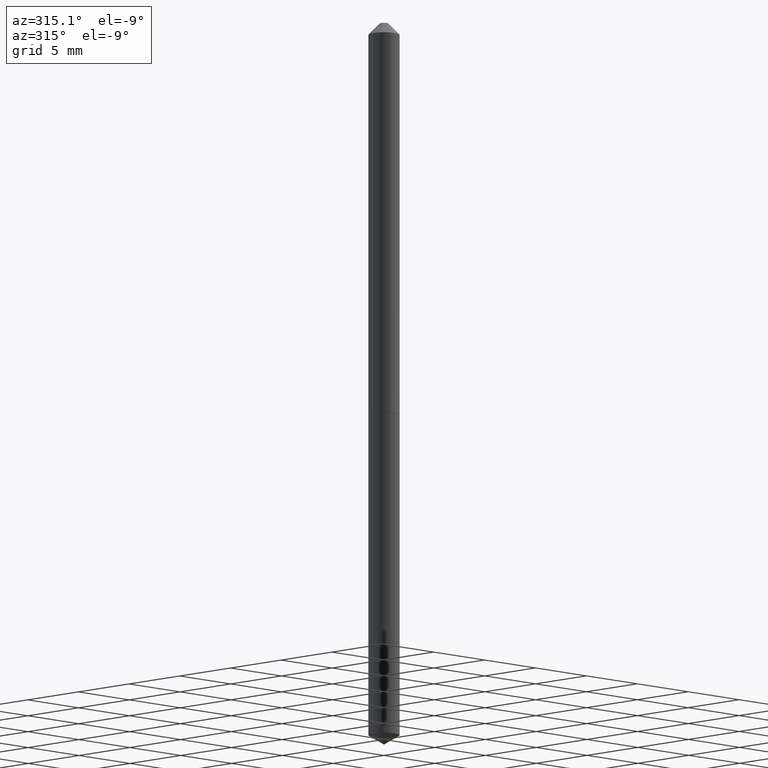
[diagram: clean part render]
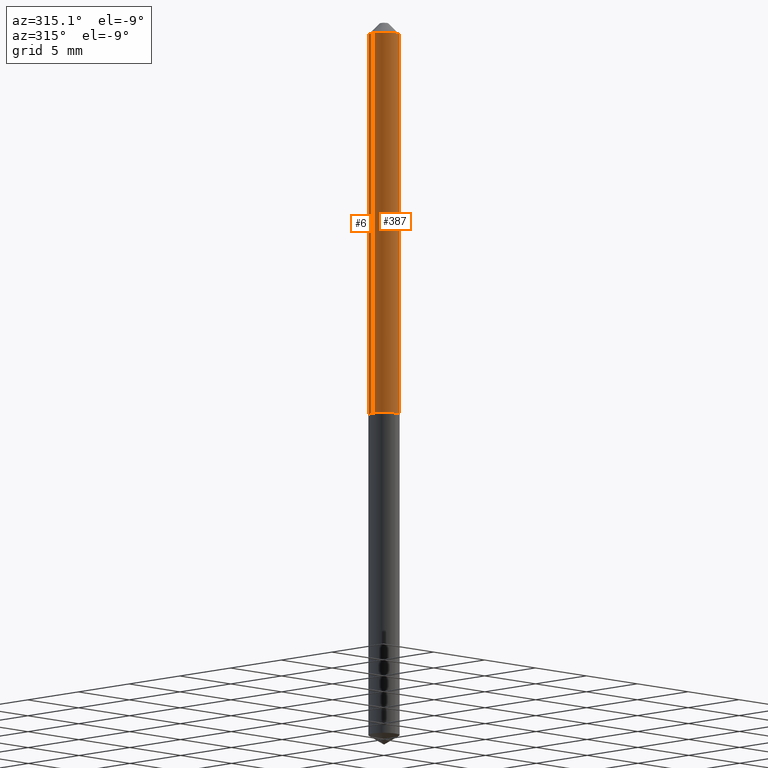
[diagram: same view with one multi-face feature highlighted, each face labeled with its STEP entity id]
A machine part, auxiliary view. The highlighted faces form ONE feature: a constant-radius fillet chain: 2 tangent blend faces with common blend radius 1.0922 mm. The faces share edges in the B-rep.
Their STEP definitions:
[1] entity #6 (Cylinder):
#3 = ORIENTED_EDGE ( 'NONE', *, *, #52, .F. ) ;
#6 = ADVANCED_FACE ( 'NONE', ( #16 ), #342, .T. ) ;
#16 = FACE_OUTER_BOUND ( 'NONE', #121, .T. ) ;
#18 = CIRCLE ( 'NONE', #99, 0.04300000000000013534 ) ;
#20 = CARTESIAN_POINT ( 'NONE',  ( -0.04300000000000001044, -1.644022516199696687E-15, -0.03125000000000020817 ) ) ;
#22 = DIRECTION ( 'NONE',  ( -2.445468806185136877E-29, 3.491481338843145188E-15, 1.000000000000000000 ) ) ;
#30 = CIRCLE ( 'NONE', #134, 0.04300000000000001044 ) ;
#38 = ORIENTED_EDGE ( 'NONE', *, *, #179, .T. ) ;
#42 = VERTEX_POINT ( 'NONE', #164 ) ;
#46 = DIRECTION ( 'NONE',  ( -2.445468806185136877E-29, 3.491481338843145188E-15, 1.000000000000000000 ) ) ;
#52 = EDGE_CURVE ( 'NONE', #89, #42, #319, .T. ) ;
#56 = ORIENTED_EDGE ( 'NONE', *, *, #240, .F. ) ;
#65 = VECTOR ( 'NONE', #46, 39.37007874015748143 ) ;
#89 = VERTEX_POINT ( 'NONE', #168 ) ;
#99 = AXIS2_PLACEMENT_3D ( 'NONE', #115, #232, #259 ) ;
#115 = CARTESIAN_POINT ( 'NONE',  ( 2.654556389113965852E-29, -3.790002993314234131E-15, -1.085499999999999909 ) ) ;
#121 = EDGE_LOOP ( 'NONE', ( #303, #38, #56, #3 ) ) ;
#134 = AXIS2_PLACEMENT_3D ( 'NONE', #268, #265, #304 ) ;
#136 = EDGE_CURVE ( 'NONE', #89, #141, #18, .T. ) ;
#141 = VERTEX_POINT ( 'NONE', #178 ) ;
#164 = CARTESIAN_POINT ( 'NONE',  ( 0.04300000000000001044, -4.093761869793585120E-16, -0.03125000000000020817 ) ) ;
#168 = CARTESIAN_POINT ( 'NONE',  ( 0.04300000000000013534, -4.090270388454744578E-15, -1.085499999999999909 ) ) ;
#170 = CARTESIAN_POINT ( 'NONE',  ( -0.04300000000000007983, 3.055333763768436471E-16, -2.115142088809613253E-30 ) ) ;
#178 = CARTESIAN_POINT ( 'NONE',  ( -0.04300000000000013534, -3.484469616937389991E-15, -1.085499999999999909 ) ) ;
#179 = EDGE_CURVE ( 'NONE', #141, #332, #230, .T. ) ;
#195 = DIRECTION ( 'NONE',  ( 1.000000000000000000, -6.982962677686265922E-15, 4.876176775795935793E-29 ) ) ;
#204 = VECTOR ( 'NONE', #22, 39.37007874015748143 ) ;
#221 = CARTESIAN_POINT ( 'NONE',  ( 0.000000000000000000, 0.000000000000000000, 0.000000000000000000 ) ) ;
#230 = LINE ( 'NONE', #170, #65 ) ;
#232 = DIRECTION ( 'NONE',  ( -2.445468806185136597E-29, 3.491481338843145583E-15, 1.000000000000000000 ) ) ;
#240 = EDGE_CURVE ( 'NONE', #42, #332, #30, .T. ) ;
#255 = AXIS2_PLACEMENT_3D ( 'NONE', #221, #345, #195 ) ;
#259 = DIRECTION ( 'NONE',  ( 1.000000000000000000, -6.982962677686265133E-15, 0.000000000000000000 ) ) ;
#265 = DIRECTION ( 'NONE',  ( -2.445468806185136597E-29, 3.491481338843145583E-15, 1.000000000000000000 ) ) ;
#268 = CARTESIAN_POINT ( 'NONE',  ( 7.642090019328602662E-31, -1.091087918388490267E-16, -0.03125000000000020817 ) ) ;
#303 = ORIENTED_EDGE ( 'NONE', *, *, #136, .T. ) ;
#304 = DIRECTION ( 'NONE',  ( 1.000000000000000000, -6.982962677686265922E-15, 0.000000000000000000 ) ) ;
#319 = LINE ( 'NONE', #356, #204 ) ;
#332 = VERTEX_POINT ( 'NONE', #20 ) ;
#342 = CYLINDRICAL_SURFACE ( 'NONE', #255, 0.04300000000000007983 ) ;
#345 = DIRECTION ( 'NONE',  ( -2.445468806185136597E-29, 3.491481338843145583E-15, 1.000000000000000000 ) ) ;
#356 = CARTESIAN_POINT ( 'NONE',  ( 0.04300000000000007983, -3.002673951405100030E-16, 2.096756013592256259E-30 ) ) ;
[2] entity #387 (Cylinder):
#13 = CIRCLE ( 'NONE', #227, 0.04300000000000013534 ) ;
#20 = CARTESIAN_POINT ( 'NONE',  ( -0.04300000000000001044, -1.644022516199696687E-15, -0.03125000000000020817 ) ) ;
#22 = DIRECTION ( 'NONE',  ( -2.445468806185136877E-29, 3.491481338843145188E-15, 1.000000000000000000 ) ) ;
#32 = CARTESIAN_POINT ( 'NONE',  ( 2.654556389113965852E-29, -3.790002993314234131E-15, -1.085499999999999909 ) ) ;
#42 = VERTEX_POINT ( 'NONE', #164 ) ;
#46 = DIRECTION ( 'NONE',  ( -2.445468806185136877E-29, 3.491481338843145188E-15, 1.000000000000000000 ) ) ;
#52 = EDGE_CURVE ( 'NONE', #89, #42, #319, .T. ) ;
#55 = ORIENTED_EDGE ( 'NONE', *, *, #52, .T. ) ;
#57 = AXIS2_PLACEMENT_3D ( 'NONE', #338, #245, #237 ) ;
#65 = VECTOR ( 'NONE', #46, 39.37007874015748143 ) ;
#79 = CYLINDRICAL_SURFACE ( 'NONE', #91, 0.04300000000000007983 ) ;
#89 = VERTEX_POINT ( 'NONE', #168 ) ;
#91 = AXIS2_PLACEMENT_3D ( 'NONE', #198, #169, #144 ) ;
#119 = ORIENTED_EDGE ( 'NONE', *, *, #179, .F. ) ;
#141 = VERTEX_POINT ( 'NONE', #178 ) ;
#144 = DIRECTION ( 'NONE',  ( 1.000000000000000000, -6.982962677686265922E-15, 4.876176775795935793E-29 ) ) ;
#164 = CARTESIAN_POINT ( 'NONE',  ( 0.04300000000000001044, -4.093761869793585120E-16, -0.03125000000000020817 ) ) ;
#168 = CARTESIAN_POINT ( 'NONE',  ( 0.04300000000000013534, -4.090270388454744578E-15, -1.085499999999999909 ) ) ;
#169 = DIRECTION ( 'NONE',  ( -2.445468806185136597E-29, 3.491481338843145583E-15, 1.000000000000000000 ) ) ;
#170 = CARTESIAN_POINT ( 'NONE',  ( -0.04300000000000007983, 3.055333763768436471E-16, -2.115142088809613253E-30 ) ) ;
#178 = CARTESIAN_POINT ( 'NONE',  ( -0.04300000000000013534, -3.484469616937389991E-15, -1.085499999999999909 ) ) ;
#179 = EDGE_CURVE ( 'NONE', #141, #332, #230, .T. ) ;
#198 = CARTESIAN_POINT ( 'NONE',  ( 0.000000000000000000, 0.000000000000000000, 0.000000000000000000 ) ) ;
#204 = VECTOR ( 'NONE', #22, 39.37007874015748143 ) ;
#216 = ORIENTED_EDGE ( 'NONE', *, *, #285, .T. ) ;
#227 = AXIS2_PLACEMENT_3D ( 'NONE', #32, #271, #239 ) ;
#230 = LINE ( 'NONE', #170, #65 ) ;
#237 = DIRECTION ( 'NONE',  ( 1.000000000000000000, -6.982962677686265922E-15, 0.000000000000000000 ) ) ;
#238 = EDGE_LOOP ( 'NONE', ( #119, #216, #55, #311 ) ) ;
#239 = DIRECTION ( 'NONE',  ( 1.000000000000000000, -6.982962677686265133E-15, 0.000000000000000000 ) ) ;
#245 = DIRECTION ( 'NONE',  ( -2.445468806185136597E-29, 3.491481338843145583E-15, 1.000000000000000000 ) ) ;
#263 = FACE_OUTER_BOUND ( 'NONE', #238, .T. ) ;
#271 = DIRECTION ( 'NONE',  ( -2.445468806185136597E-29, 3.491481338843145583E-15, 1.000000000000000000 ) ) ;
#285 = EDGE_CURVE ( 'NONE', #141, #89, #13, .T. ) ;
#288 = EDGE_CURVE ( 'NONE', #332, #42, #382, .T. ) ;
#311 = ORIENTED_EDGE ( 'NONE', *, *, #288, .F. ) ;
#319 = LINE ( 'NONE', #356, #204 ) ;
#332 = VERTEX_POINT ( 'NONE', #20 ) ;
#338 = CARTESIAN_POINT ( 'NONE',  ( 7.642090019328602662E-31, -1.091087918388490267E-16, -0.03125000000000020817 ) ) ;
#356 = CARTESIAN_POINT ( 'NONE',  ( 0.04300000000000007983, -3.002673951405100030E-16, 2.096756013592256259E-30 ) ) ;
#382 = CIRCLE ( 'NONE', #57, 0.04300000000000001044 ) ;
#387 = ADVANCED_FACE ( 'NONE', ( #263 ), #79, .T. ) ;